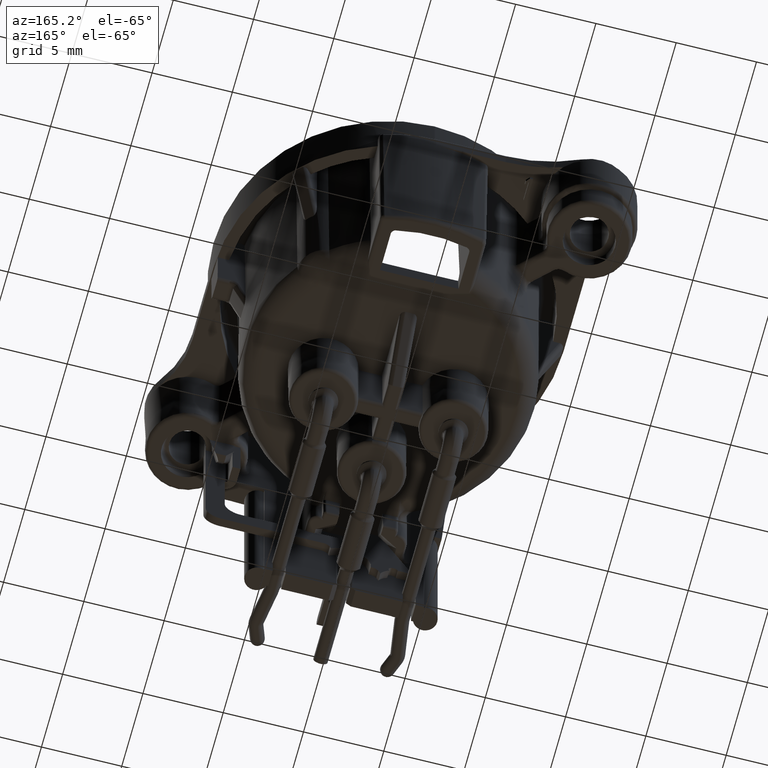
[diagram: clean part render]
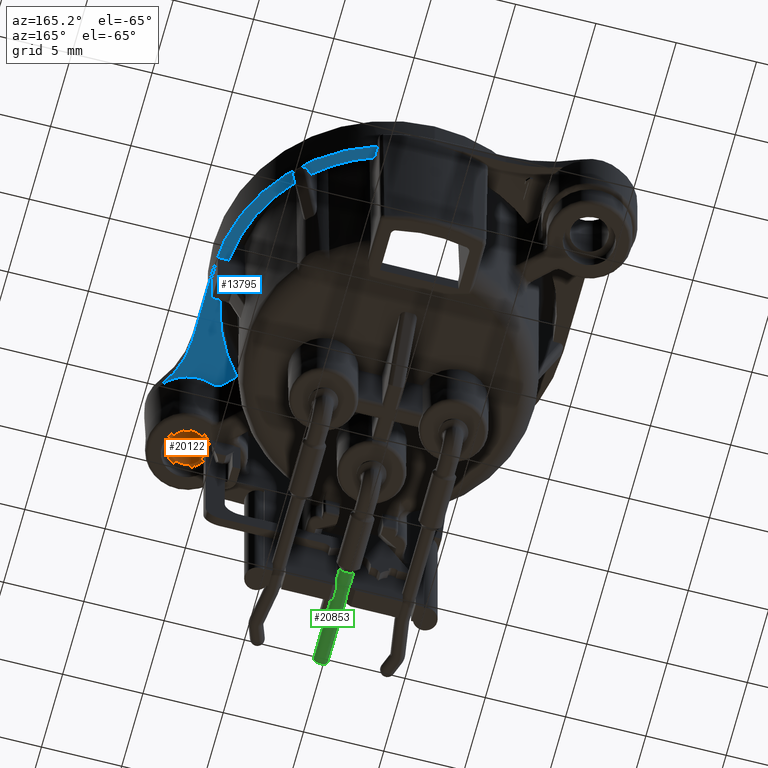
[diagram: same view with three faces highlighted in distinct colors, each labeled with its STEP entity id]
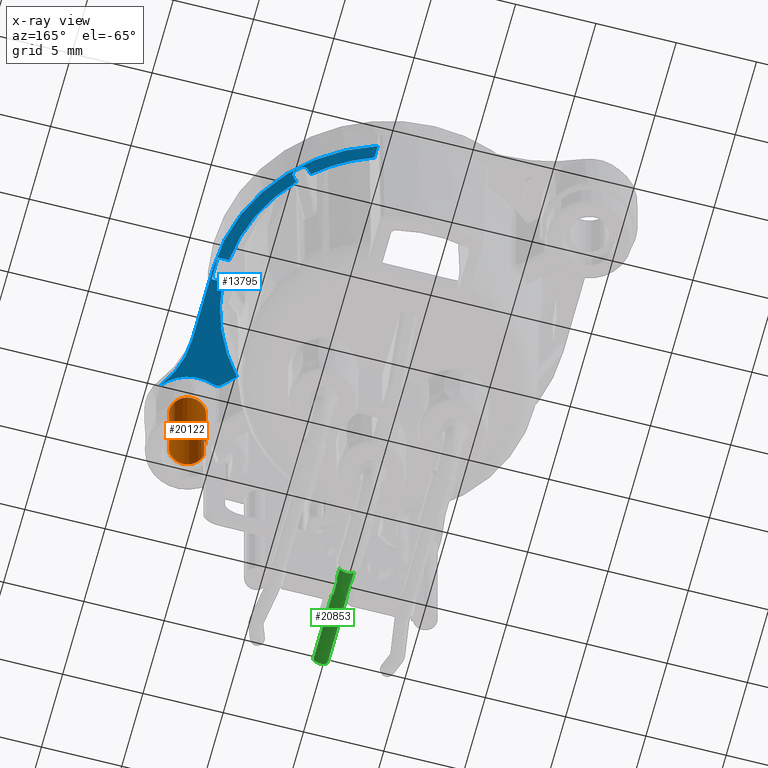
[diagram: x-ray of the same camera — body ghosted, the three highlighted faces saturated]
A machine part, auxiliary view with three faces highlighted in distinct colors.
The next image is the same camera in x-ray (body ghosted, the three faces saturated) — at least one of them is partly hidden behind the body in this view.
Their STEP definitions:

[orange] entity #20122 — the highlighted cylindrical surface (edge-blend (fillet) strip) has radius 1.125 mm, axis along (0, 0, 1).
#2098=DIRECTION('',(0.E0,0.E0,1.E0));
#2099=VECTOR('',#2098,4.7E0);
#2100=CARTESIAN_POINT('',(8.779453258449E0,-9.8E0,-5.5E0));
#2101=LINE('',#2100,#2099);
#5461=DIRECTION('',(0.E0,0.E0,1.E0));
#5462=VECTOR('',#5461,4.7E0);
#5463=CARTESIAN_POINT('',(8.8E0,-1.013584952830E1,-5.5E0));
#5464=LINE('',#5463,#5462);
#5513=CARTESIAN_POINT('',(9.9E0,-9.9E0,-5.5E0));
#5514=DIRECTION('',(0.E0,0.E0,-1.E0));
#5515=DIRECTION('',(-9.960415480451E-1,8.888888888889E-2,0.E0));
#5516=AXIS2_PLACEMENT_3D('',#5513,#5514,#5515);
#5522=CARTESIAN_POINT('',(9.9E0,-9.9E0,-8.E-1));
#5523=DIRECTION('',(0.E0,0.E0,-1.E0));
#5524=DIRECTION('',(-9.960415480451E-1,8.888888888889E-2,0.E0));
#5525=AXIS2_PLACEMENT_3D('',#5522,#5523,#5524);
#13694=CARTESIAN_POINT('',(8.779453258449E0,-9.8E0,-8.E-1));
#13696=VERTEX_POINT('',#13694);
#13698=CARTESIAN_POINT('',(8.779453258449E0,-9.8E0,-5.5E0));
#13699=VERTEX_POINT('',#13698);
#13703=CARTESIAN_POINT('',(8.8E0,-1.013584952830E1,-8.E-1));
#13705=VERTEX_POINT('',#13703);
#13706=CARTESIAN_POINT('',(8.8E0,-1.013584952830E1,-5.5E0));
#13707=VERTEX_POINT('',#13706);
#20111=CARTESIAN_POINT('',(9.9E0,-9.9E0,-6.615E0));
#20112=DIRECTION('',(0.E0,0.E0,1.E0));
#20113=DIRECTION('',(-1.E0,0.E0,0.E0));
#20114=AXIS2_PLACEMENT_3D('',#20111,#20112,#20113);
#20115=CYLINDRICAL_SURFACE('',#20114,1.125E0);
#20116=ORIENTED_EDGE('',*,*,#19957,.T.);
#20117=ORIENTED_EDGE('',*,*,#19987,.F.);
#20118=ORIENTED_EDGE('',*,*,#20096,.F.);
#20119=ORIENTED_EDGE('',*,*,#15888,.T.);
#20120=EDGE_LOOP('',(#20116,#20117,#20118,#20119));
#20121=FACE_OUTER_BOUND('',#20120,.F.);
#20122=ADVANCED_FACE('',(#20121),#20115,.F.);
#5517=CIRCLE('',#5516,1.125E0);
#5526=CIRCLE('',#5525,1.125E0);
#15888=EDGE_CURVE('',#13699,#13696,#2101,.T.);
#19957=EDGE_CURVE('',#13696,#13705,#5526,.T.);
#19987=EDGE_CURVE('',#13707,#13705,#5464,.T.);
#20096=EDGE_CURVE('',#13699,#13707,#5517,.T.);

[blue] entity #13795 — the highlighted planar face has unit normal (0, 0, -1).
#64=DIRECTION('',(0.E0,-1.E0,0.E0));
#65=VECTOR('',#64,7.956021469353E-1);
#66=CARTESIAN_POINT('',(3.4E0,1.035615758860E1,-1.E0));
#67=LINE('',#66,#65);
#68=CARTESIAN_POINT('',(0.E0,0.E0,-1.E0));
#69=DIRECTION('',(0.E0,0.E0,-1.E0));
#70=DIRECTION('',(3.350701571642E-1,9.421931807108E-1,0.E0));
#71=AXIS2_PLACEMENT_3D('',#68,#69,#70);
#73=DIRECTION('',(7.071067811865E-1,7.071067811865E-1,0.E0));
#74=VECTOR('',#73,3.720002994091E-1);
#75=CARTESIAN_POINT('',(6.812834135672E0,7.519940916859E0,-1.E0));
#76=LINE('',#75,#74);
#77=DIRECTION('',(-7.071067811865E-1,7.071067811865E-1,0.E0));
#78=VECTOR('',#77,4.015952032416E-1);
#79=CARTESIAN_POINT('',(7.793864142904E0,7.509893451400E0,-1.E0));
#80=LINE('',#79,#78);
#81=DIRECTION('',(-7.071067811865E-1,-7.071067811865E-1,0.E0));
#82=VECTOR('',#81,3.720002994091E-1);
#83=CARTESIAN_POINT('',(7.782984851174E0,7.075878069988E0,-1.E0));
#84=LINE('',#83,#82);
#85=CARTESIAN_POINT('',(0.E0,0.E0,-1.E0));
#86=DIRECTION('',(0.E0,0.E0,-1.E0));
#87=DIRECTION('',(7.410905249639E-1,6.714051189921E-1,0.E0));
#88=AXIS2_PLACEMENT_3D('',#85,#86,#87);
#90=DIRECTION('',(0.E0,-1.E0,0.E0));
#91=VECTOR('',#90,1.5E0);
#92=CARTESIAN_POINT('',(1.082139077257E1,7.5E-1,-1.E0));
#93=LINE('',#92,#91);
#94=CARTESIAN_POINT('',(0.E0,0.E0,-1.E0));
#95=DIRECTION('',(0.E0,0.E0,-1.E0));
#96=DIRECTION('',(9.972647277523E-1,-7.391253466857E-2,0.E0));
#97=AXIS2_PLACEMENT_3D('',#94,#95,#96);
#99=DIRECTION('',(7.070853660471E-1,-7.071281956774E-1,0.E0));
#100=VECTOR('',#99,1.039749997929E0);
#101=CARTESIAN_POINT('',(7.679718519854E0,-6.632205048777E0,-1.E0));
#102=LINE('',#101,#100);
#103=CARTESIAN_POINT('',(8.950961598517E0,-7.479395506798E0,-1.E0));
#104=CARTESIAN_POINT('',(8.904723588442E0,-7.497523890552E0,-1.E0));
#105=CARTESIAN_POINT('',(8.811322872016E0,-7.519006318926E0,-1.E0));
#106=CARTESIAN_POINT('',(8.663385288480E0,-7.510174880180E0,-1.E0));
#107=CARTESIAN_POINT('',(8.526084433995E0,-7.458928622274E0,-1.E0));
#108=CARTESIAN_POINT('',(8.449686801295E0,-7.402219968797E0,-1.E0));
#109=CARTESIAN_POINT('',(8.414910527738E0,-7.367441588768E0,-1.E0));
#111=CARTESIAN_POINT('',(9.9E0,-9.9E0,-1.E0));
#112=DIRECTION('',(0.E0,0.E0,-1.E0));
#113=DIRECTION('',(-3.650147698010E-1,9.310017281548E-1,0.E0));
#114=AXIS2_PLACEMENT_3D('',#111,#112,#113);
#116=CARTESIAN_POINT('',(1.675E1,-4.952273249259E0,-1.E0));
#117=DIRECTION('',(0.E0,0.E0,1.E0));
#118=DIRECTION('',(-1.E0,0.E0,0.E0));
#119=AXIS2_PLACEMENT_3D('',#116,#117,#118);
#121=DIRECTION('',(0.E0,-1.E0,0.E0));
#122=VECTOR('',#121,4.952273249259E0);
#123=CARTESIAN_POINT('',(1.09E1,0.E0,-1.E0));
#124=LINE('',#123,#122);
#1477=CARTESIAN_POINT('',(0.E0,0.E0,-1.E0));
#1478=DIRECTION('',(0.E0,0.E0,-1.E0));
#1479=DIRECTION('',(3.119266055046E-1,9.501062007894E-1,0.E0));
#1480=AXIS2_PLACEMENT_3D('',#1477,#1478,#1479);
#3831=DIRECTION('',(1.E0,0.E0,0.E0));
#3832=VECTOR('',#3831,7.020172567205E-1);
#3833=CARTESIAN_POINT('',(1.011937351585E1,-7.5E-1,-1.E0));
#3834=LINE('',#3833,#3832);
#3931=DIRECTION('',(-1.E0,0.E0,0.E0));
#3932=VECTOR('',#3931,7.020172567205E-1);
#3933=CARTESIAN_POINT('',(1.082139077257E1,7.5E-1,-1.E0));
#3934=LINE('',#3933,#3932);
#9352=CARTESIAN_POINT('',(7.509893451400E0,7.793864142904E0,-1.E0));
#9353=CARTESIAN_POINT('',(7.437557554498E0,7.866200039806E0,-1.E0));
#9354=CARTESIAN_POINT('',(7.292885760694E0,7.895875848728E0,-1.E0));
#9355=CARTESIAN_POINT('',(7.148213966890E0,7.855320748076E0,-1.E0));
#9356=CARTESIAN_POINT('',(7.075878069988E0,7.782984851174E0,-1.E0));
#9403=CARTESIAN_POINT('',(7.782984851174E0,7.075878069988E0,-1.E0));
#9404=CARTESIAN_POINT('',(7.855320748076E0,7.148213966890E0,-1.E0));
#9405=CARTESIAN_POINT('',(7.895875848728E0,7.292885760694E0,-1.E0));
#9406=CARTESIAN_POINT('',(7.866200039806E0,7.437557554498E0,-1.E0));
#9407=CARTESIAN_POINT('',(7.793864142904E0,7.509893451400E0,-1.E0));
#11109=CARTESIAN_POINT('',(1.09E1,-4.952273249259E0,-1.E0));
#11110=CARTESIAN_POINT('',(1.200769230769E1,-8.377622538233E0,-1.E0));
#11111=VERTEX_POINT('',#11109);
#11112=VERTEX_POINT('',#11110);
#11117=CARTESIAN_POINT('',(1.09E1,0.E0,-1.E0));
#11118=VERTEX_POINT('',#11117);
#12035=CARTESIAN_POINT('',(7.519940916859E0,6.812834135672E0,-1.E0));
#12036=CARTESIAN_POINT('',(1.011937351585E1,7.5E-1,-1.E0));
#12037=VERTEX_POINT('',#12035);
#12038=VERTEX_POINT('',#12036);
#12039=CARTESIAN_POINT('',(1.011937351585E1,-7.5E-1,-1.E0));
#12040=CARTESIAN_POINT('',(7.679718519854E0,-6.632205048777E0,-1.E0));
#12041=VERTEX_POINT('',#12039);
#12042=VERTEX_POINT('',#12040);
#12059=CARTESIAN_POINT('',(3.4E0,9.560555441669E0,-1.E0));
#12060=CARTESIAN_POINT('',(6.812834135672E0,7.519940916859E0,-1.E0));
#12061=VERTEX_POINT('',#12059);
#12062=VERTEX_POINT('',#12060);
#12063=CARTESIAN_POINT('',(1.082139077257E1,7.5E-1,-1.E0));
#12064=VERTEX_POINT('',#12063);
#12065=CARTESIAN_POINT('',(1.082139077257E1,-7.5E-1,-1.E0));
#12066=VERTEX_POINT('',#12065);
#12203=VERTEX_POINT('',#103);
#12204=VERTEX_POINT('',#109);
#12304=CARTESIAN_POINT('',(7.793864142904E0,7.509893451400E0,-1.E0));
#12306=VERTEX_POINT('',#12304);
#12308=CARTESIAN_POINT('',(7.782984851174E0,7.075878069988E0,-1.E0));
#12310=VERTEX_POINT('',#12308);
#12311=CARTESIAN_POINT('',(7.509893451400E0,7.793864142904E0,-1.E0));
#12313=VERTEX_POINT('',#12311);
#12315=CARTESIAN_POINT('',(7.075878069988E0,7.782984851174E0,-1.E0));
#12317=VERTEX_POINT('',#12315);
#12701=CARTESIAN_POINT('',(3.4E0,1.035615758860E1,-1.E0));
#12702=VERTEX_POINT('',#12701);
#13752=CARTESIAN_POINT('',(0.E0,0.E0,-1.E0));
#13753=DIRECTION('',(0.E0,0.E0,-1.E0));
#13754=DIRECTION('',(0.E0,-1.E0,0.E0));
#13755=AXIS2_PLACEMENT_3D('',#13752,#13753,#13754);
#13756=PLANE('',#13755);
#13758=ORIENTED_EDGE('',*,*,#13757,.F.);
#13760=ORIENTED_EDGE('',*,*,#13759,.T.);
#13762=ORIENTED_EDGE('',*,*,#13761,.T.);
#13764=ORIENTED_EDGE('',*,*,#13763,.T.);
#13766=ORIENTED_EDGE('',*,*,#13765,.F.);
#13768=ORIENTED_EDGE('',*,*,#13767,.F.);
#13770=ORIENTED_EDGE('',*,*,#13769,.F.);
#13772=ORIENTED_EDGE('',*,*,#13771,.T.);
#13774=ORIENTED_EDGE('',*,*,#13773,.T.);
#13776=ORIENTED_EDGE('',*,*,#13775,.F.);
#13778=ORIENTED_EDGE('',*,*,#13777,.T.);
#13780=ORIENTED_EDGE('',*,*,#13779,.F.);
#13782=ORIENTED_EDGE('',*,*,#13781,.T.);
#13784=ORIENTED_EDGE('',*,*,#13783,.T.);
#13786=ORIENTED_EDGE('',*,*,#13785,.F.);
#13788=ORIENTED_EDGE('',*,*,#13787,.T.);
#13790=ORIENTED_EDGE('',*,*,#13789,.F.);
#13792=ORIENTED_EDGE('',*,*,#13791,.F.);
#13793=EDGE_LOOP('',(#13758,#13760,#13762,#13764,#13766,#13768,#13770,#13772,
#13774,#13776,#13778,#13780,#13782,#13784,#13786,#13788,#13790,#13792));
#13794=FACE_OUTER_BOUND('',#13793,.F.);
#13795=ADVANCED_FACE('',(#13794),#13756,.T.);
#72=CIRCLE('',#71,1.014712867531E1);
#89=CIRCLE('',#88,1.014712867531E1);
#98=CIRCLE('',#97,1.014712867531E1);
#110=B_SPLINE_CURVE_WITH_KNOTS('',3,(#103,#104,#105,#106,#107,#108,#109),
.UNSPECIFIED.,.F.,.F.,(4,1,1,1,4),(0.E0,2.5E-1,5.E-1,7.5E-1,1.E0),
.UNSPECIFIED.);
#115=CIRCLE('',#114,2.6E0);
#120=CIRCLE('',#119,5.85E0);
#1481=CIRCLE('',#1480,1.09E1);
#9357=B_SPLINE_CURVE_WITH_KNOTS('',3,(#9352,#9353,#9354,#9355,#9356),
.UNSPECIFIED.,.F.,.F.,(4,1,4),(0.E0,5.E-1,1.E0),.UNSPECIFIED.);
#9408=B_SPLINE_CURVE_WITH_KNOTS('',3,(#9403,#9404,#9405,#9406,#9407),
.UNSPECIFIED.,.F.,.F.,(4,1,4),(0.E0,5.E-1,1.E0),.UNSPECIFIED.);
#13757=EDGE_CURVE('',#12702,#11118,#1481,.T.);
#13759=EDGE_CURVE('',#12702,#12061,#67,.T.);
#13761=EDGE_CURVE('',#12061,#12062,#72,.T.);
#13763=EDGE_CURVE('',#12062,#12317,#76,.T.);
#13765=EDGE_CURVE('',#12313,#12317,#9357,.T.);
#13767=EDGE_CURVE('',#12306,#12313,#80,.T.);
#13769=EDGE_CURVE('',#12310,#12306,#9408,.T.);
#13771=EDGE_CURVE('',#12310,#12037,#84,.T.);
#13773=EDGE_CURVE('',#12037,#12038,#89,.T.);
#13775=EDGE_CURVE('',#12064,#12038,#3934,.T.);
#13777=EDGE_CURVE('',#12064,#12066,#93,.T.);
#13779=EDGE_CURVE('',#12041,#12066,#3834,.T.);
#13781=EDGE_CURVE('',#12041,#12042,#98,.T.);
#13783=EDGE_CURVE('',#12042,#12204,#102,.T.);
#13785=EDGE_CURVE('',#12203,#12204,#110,.T.);
#13787=EDGE_CURVE('',#12203,#11112,#115,.T.);
#13789=EDGE_CURVE('',#11111,#11112,#120,.T.);
#13791=EDGE_CURVE('',#11118,#11111,#124,.T.);

[green] entity #20853 — the highlighted cylindrical surface (edge-blend (fillet) strip) has radius 0.45 mm, axis along (0, -1, 0).
#4923=CARTESIAN_POINT('',(-4.5E-1,-1.152224360798E1,-1.78E1));
#4924=CARTESIAN_POINT('',(-4.5E-1,-1.152160863762E1,-1.787276039678E1));
#4925=CARTESIAN_POINT('',(-4.333334665233E-1,-1.152100894071E1,
-1.794147885618E1));
#4926=CARTESIAN_POINT('',(-4.E-1,-1.152044451810E1,-1.800615528128E1));
#5976=CARTESIAN_POINT('',(-4.5E-1,-1.047320508076E1,-1.78E1));
#5977=CARTESIAN_POINT('',(-4.5E-1,-1.047320508076E1,-1.788282238016E1));
#5978=CARTESIAN_POINT('',(-4.297224908633E-1,-1.050832675683E1,
-1.794848517809E1));
#5979=CARTESIAN_POINT('',(-4.E-1,-1.055980762114E1,-1.800615528128E1));
#6000=CARTESIAN_POINT('',(0.E0,-1.6E1,-1.78E1));
#6001=DIRECTION('',(0.E0,-1.E0,0.E0));
#6002=DIRECTION('',(-1.E0,0.E0,0.E0));
#6003=AXIS2_PLACEMENT_3D('',#6000,#6001,#6002);
#6005=DIRECTION('',(0.E0,-1.E0,0.E0));
#6006=VECTOR('',#6005,9.448781484122E-1);
#6007=CARTESIAN_POINT('',(4.E-1,-1.055980762114E1,-1.800615528128E1));
#6008=LINE('',#6007,#6006);
#6017=CARTESIAN_POINT('',(4.E-1,-1.150468576955E1,-1.800615528128E1));
#6018=CARTESIAN_POINT('',(4.333334183191E-1,-1.150409484004E1,
-1.794147894971E1));
#6019=CARTESIAN_POINT('',(4.5E-1,-1.150411686561E1,-1.787276050200E1));
#6020=CARTESIAN_POINT('',(4.5E-1,-1.150475183689E1,-1.78E1));
#6056=DIRECTION('',(0.E0,1.E0,0.E0));
#6057=VECTOR('',#6056,4.495248163105E0);
#6058=CARTESIAN_POINT('',(4.5E-1,-1.6E1,-1.78E1));
#6059=LINE('',#6058,#6057);
#6065=DIRECTION('',(0.E0,1.E0,0.E0));
#6066=VECTOR('',#6065,4.477756392016E0);
#6067=CARTESIAN_POINT('',(-4.5E-1,-1.6E1,-1.78E1));
#6068=LINE('',#6067,#6066);
#6069=DIRECTION('',(0.E0,1.E0,0.E0));
#6070=VECTOR('',#6069,7.182303339263E-1);
#6071=CARTESIAN_POINT('',(-4.5E-1,-1.047320508076E1,-1.78E1));
#6072=LINE('',#6071,#6070);
#6073=DIRECTION('',(0.E0,1.E0,0.E0));
#6074=VECTOR('',#6073,7.182303339263E-1);
#6075=CARTESIAN_POINT('',(4.5E-1,-1.047320508076E1,-1.78E1));
#6076=LINE('',#6075,#6074);
#6089=CARTESIAN_POINT('',(4.E-1,-1.055980762114E1,-1.800615528128E1));
#6090=CARTESIAN_POINT('',(4.297224908633E-1,-1.050832675683E1,
-1.794848517809E1));
#6091=CARTESIAN_POINT('',(4.5E-1,-1.047320508076E1,-1.788282238016E1));
#6092=CARTESIAN_POINT('',(4.5E-1,-1.047320508076E1,-1.78E1));
#7119=CARTESIAN_POINT('',(0.E0,-9.754974746831E0,-1.78E1));
#7120=DIRECTION('',(0.E0,-1.E0,0.E0));
#7121=DIRECTION('',(-1.E0,0.E0,0.E0));
#7122=AXIS2_PLACEMENT_3D('',#7119,#7120,#7121);
#8873=DIRECTION('',(0.E0,-1.E0,0.E0));
#8874=VECTOR('',#8873,9.606368969649E-1);
#8875=CARTESIAN_POINT('',(-4.E-1,-1.055980762114E1,-1.800615528128E1));
#8876=LINE('',#8875,#8874);
#13361=CARTESIAN_POINT('',(-4.5E-1,-9.754974746831E0,-1.78E1));
#13363=VERTEX_POINT('',#13361);
#13371=CARTESIAN_POINT('',(4.5E-1,-9.754974746831E0,-1.78E1));
#13373=VERTEX_POINT('',#13371);
#13381=CARTESIAN_POINT('',(-4.5E-1,-1.6E1,-1.78E1));
#13382=CARTESIAN_POINT('',(4.5E-1,-1.6E1,-1.78E1));
#13383=VERTEX_POINT('',#13381);
#13384=VERTEX_POINT('',#13382);
#13401=CARTESIAN_POINT('',(4.E-1,-1.055980762114E1,-1.800615528128E1));
#13402=CARTESIAN_POINT('',(4.E-1,-1.150468576955E1,-1.800615528128E1));
#13403=VERTEX_POINT('',#13401);
#13404=VERTEX_POINT('',#13402);
#13413=CARTESIAN_POINT('',(-4.E-1,-1.055980762114E1,-1.800615528128E1));
#13414=CARTESIAN_POINT('',(-4.E-1,-1.152044451810E1,-1.800615528128E1));
#13415=VERTEX_POINT('',#13413);
#13416=VERTEX_POINT('',#13414);
#13417=VERTEX_POINT('',#6092);
#13418=VERTEX_POINT('',#5976);
#13419=VERTEX_POINT('',#4923);
#13420=VERTEX_POINT('',#6020);
#20824=CARTESIAN_POINT('',(0.E0,-5.353E0,-1.78E1));
#20825=DIRECTION('',(0.E0,-1.E0,0.E0));
#20826=DIRECTION('',(1.E0,0.E0,0.E0));
#20827=AXIS2_PLACEMENT_3D('',#20824,#20825,#20826);
#20828=CYLINDRICAL_SURFACE('',#20827,4.5E-1);
#20830=ORIENTED_EDGE('',*,*,#20829,.F.);
#20832=ORIENTED_EDGE('',*,*,#20831,.T.);
#20834=ORIENTED_EDGE('',*,*,#20833,.T.);
#20836=ORIENTED_EDGE('',*,*,#20835,.F.);
#20838=ORIENTED_EDGE('',*,*,#20837,.F.);
#20839=ORIENTED_EDGE('',*,*,#20808,.T.);
#20841=ORIENTED_EDGE('',*,*,#20840,.T.);
#20842=ORIENTED_EDGE('',*,*,#19252,.F.);
#20844=ORIENTED_EDGE('',*,*,#20843,.F.);
#20846=ORIENTED_EDGE('',*,*,#20845,.T.);
#20848=ORIENTED_EDGE('',*,*,#20847,.T.);
#20850=ORIENTED_EDGE('',*,*,#20849,.F.);
#20851=EDGE_LOOP('',(#20830,#20832,#20834,#20836,#20838,#20839,#20841,#20842,
#20844,#20846,#20848,#20850));
#20852=FACE_OUTER_BOUND('',#20851,.F.);
#20853=ADVANCED_FACE('',(#20852),#20828,.T.);
#4927=B_SPLINE_CURVE_WITH_KNOTS('',3,(#4923,#4924,#4925,#4926),.UNSPECIFIED.,
.F.,.F.,(4,4),(0.E0,1.E0),.UNSPECIFIED.);
#5980=B_SPLINE_CURVE_WITH_KNOTS('',3,(#5976,#5977,#5978,#5979),.UNSPECIFIED.,
.F.,.F.,(4,4),(0.E0,1.E0),.UNSPECIFIED.);
#6004=CIRCLE('',#6003,4.5E-1);
#6021=B_SPLINE_CURVE_WITH_KNOTS('',3,(#6017,#6018,#6019,#6020),.UNSPECIFIED.,
.F.,.F.,(4,4),(0.E0,1.E0),.UNSPECIFIED.);
#6093=B_SPLINE_CURVE_WITH_KNOTS('',3,(#6089,#6090,#6091,#6092),.UNSPECIFIED.,
.F.,.F.,(4,4),(0.E0,1.E0),.UNSPECIFIED.);
#7123=CIRCLE('',#7122,4.5E-1);
#19252=EDGE_CURVE('',#13419,#13416,#4927,.T.);
#20808=EDGE_CURVE('',#13418,#13415,#5980,.T.);
#20829=EDGE_CURVE('',#13403,#13404,#6008,.T.);
#20831=EDGE_CURVE('',#13403,#13417,#6093,.T.);
#20833=EDGE_CURVE('',#13417,#13373,#6076,.T.);
#20835=EDGE_CURVE('',#13363,#13373,#7123,.T.);
#20837=EDGE_CURVE('',#13418,#13363,#6072,.T.);
#20840=EDGE_CURVE('',#13415,#13416,#8876,.T.);
#20843=EDGE_CURVE('',#13383,#13419,#6068,.T.);
#20845=EDGE_CURVE('',#13383,#13384,#6004,.T.);
#20847=EDGE_CURVE('',#13384,#13420,#6059,.T.);
#20849=EDGE_CURVE('',#13404,#13420,#6021,.T.);